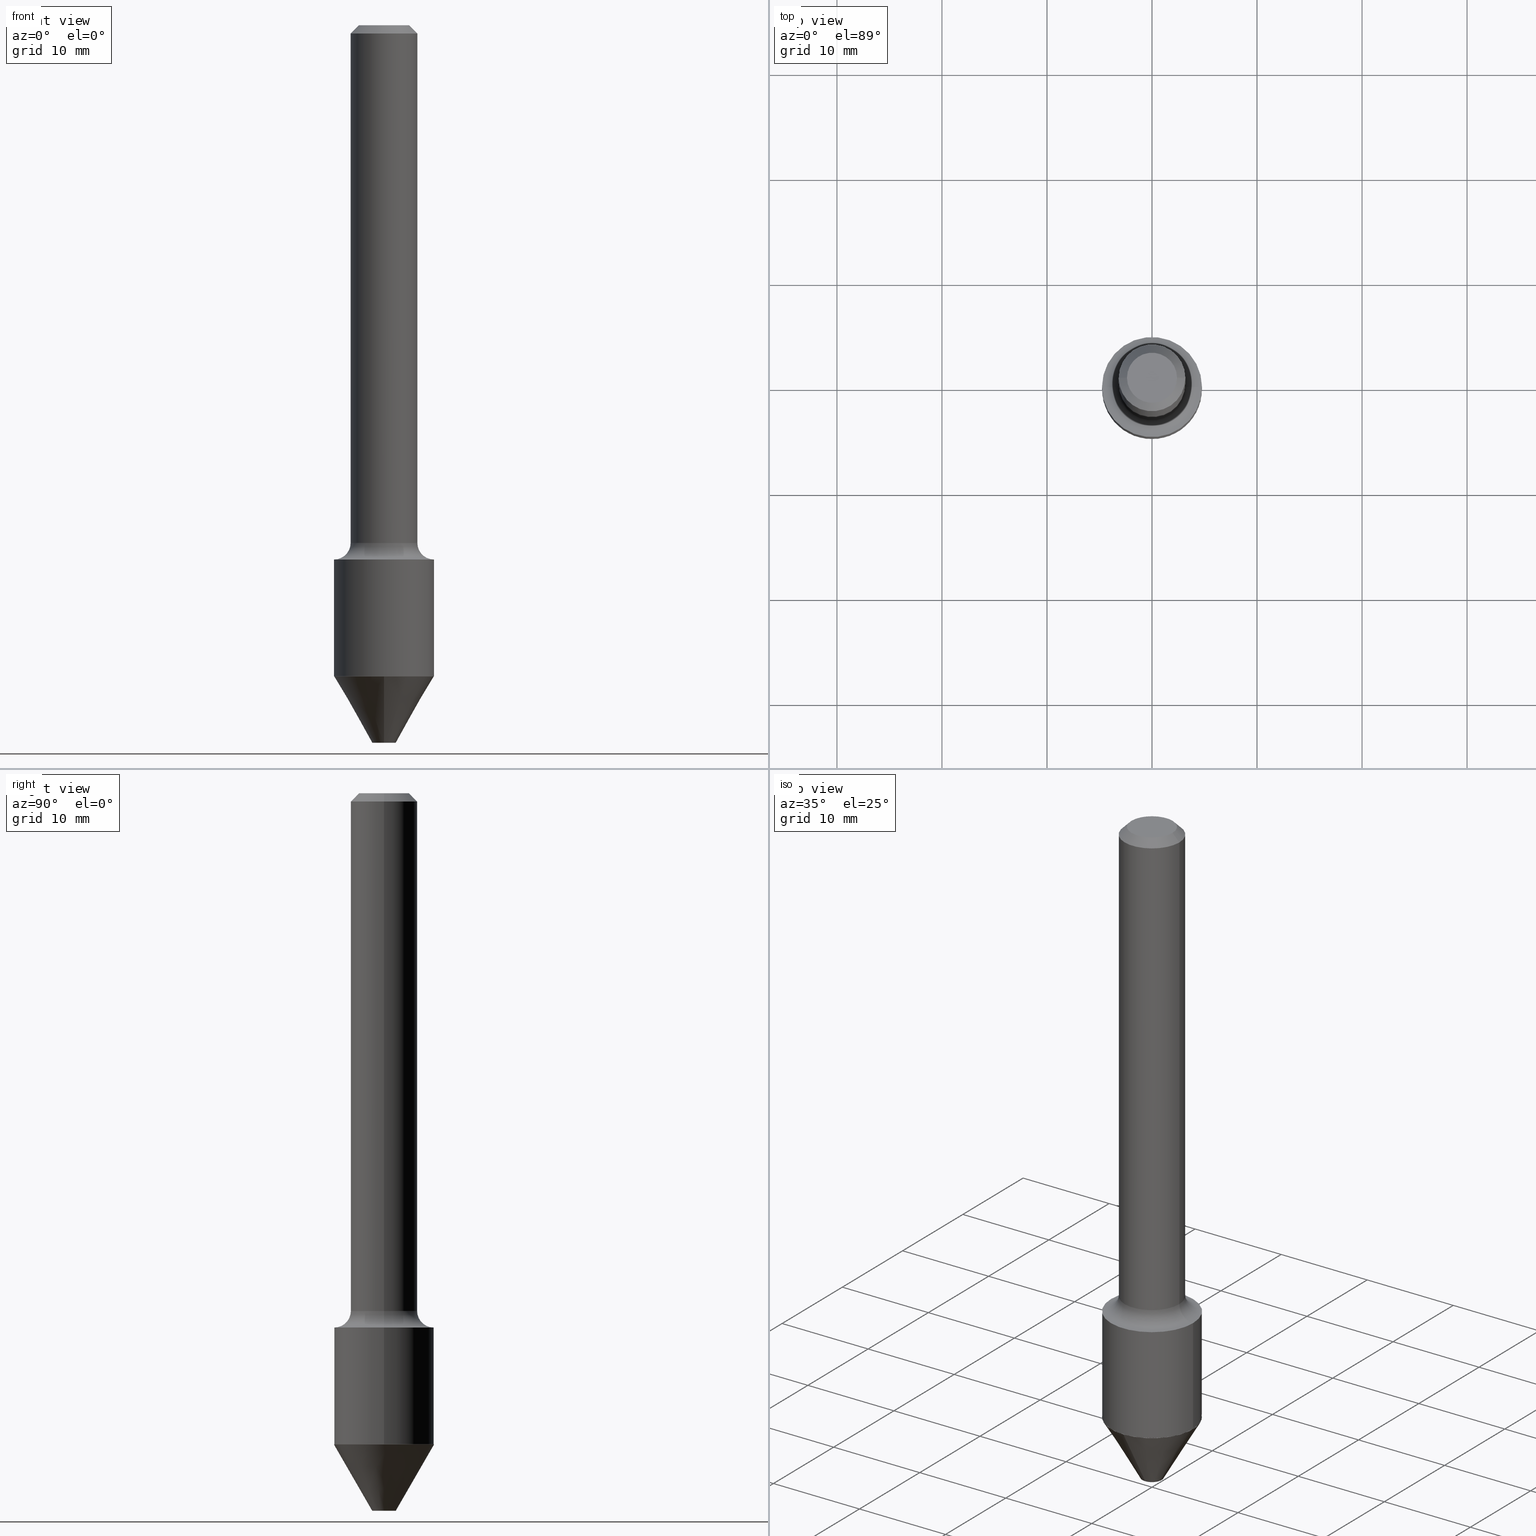
[diagram: canonical four-view strip — front | top / right | iso, engineering-drawing reading convention]
A machine part, canonical four-view strip (front | top / right | iso — engineering-drawing reading convention). The complete STEP part file that produces these views, byte-faithful:
ISO-10303-21;
HEADER;
FILE_DESCRIPTION (( 'STEP AP203' ),
    '1' );
FILE_NAME ('74134.STEP',
    '2025-06-20T12:29:13',
    ( '' ),
    ( '' ),
    'SwSTEP 2.0',
    'SolidWorks 2024',
    '' );
FILE_SCHEMA (( 'CONFIG_CONTROL_DESIGN' ));
ENDSEC;

DATA;
#1 = EDGE_CURVE ( 'NONE', #422, #252, #80, .T. ) ;
#2 = DIRECTION ( 'NONE',  ( 1.000000000000000000, -6.982962677686265922E-15, 4.876176775795935793E-29 ) ) ;
#3 = DIRECTION ( 'NONE',  ( -6.982962677686265922E-15, -1.000000000000000000, 2.913971193241881950E-15 ) ) ;
#4 = PERSON_AND_ORGANIZATION ( #440, #118 ) ;
#5 = FACE_OUTER_BOUND ( 'NONE', #281, .T. ) ;
#6 = DIRECTION ( 'NONE',  ( -2.493412854807490386E-29, 3.422822732410152858E-15, 1.000000000000000000 ) ) ;
#7 = CIRCLE ( 'NONE', #280, 0.1250000000000002498 ) ;
#8 = COORDINATED_UNIVERSAL_TIME_OFFSET ( 5, 0, .BEHIND. ) ;
#9 = CARTESIAN_POINT ( 'NONE',  ( -1.674691438524348408E-28, -4.279513526947378394E-14, -2.689999999999999947 ) ) ;
#10 = ADVANCED_FACE ( 'NONE', ( #5 ), #241, .T. ) ;
#11 =( CONVERSION_BASED_UNIT ( 'INCH', #211 ) LENGTH_UNIT ( ) NAMED_UNIT ( #265 ) );
#12 = MANIFOLD_SOLID_BREP ( 'Body-Move/Copy2[1]', #362 ) ;
#13 = CARTESIAN_POINT ( 'NONE',  ( 5.912940782711456806E-29, -8.603198800390132018E-15, -2.440950709113889783 ) ) ;
#14 = APPROVAL_ROLE ( '' ) ;
#15 = ADVANCED_FACE ( 'NONE', ( #330 ), #393, .T. ) ;
#16 = DIRECTION ( 'NONE',  ( -2.445468806185136877E-29, 3.491481338843145188E-15, 1.000000000000000000 ) ) ;
#17 = VERTEX_POINT ( 'NONE', #435 ) ;
#18 = VECTOR ( 'NONE', #267, 39.37007874015748143 ) ;
#19 = CARTESIAN_POINT ( 'NONE',  ( 0.1250000000000000000, -9.664964674933483956E-16, -0.03120000000000020327 ) ) ;
#20 = CC_DESIGN_APPROVAL ( #501, ( #467 ) ) ;
#21 = EDGE_CURVE ( 'NONE', #226, #395, #367, .T. ) ;
#22 = DIRECTION ( 'NONE',  ( -2.445468806185136597E-29, 3.491481338843145583E-15, 1.000000000000000000 ) ) ;
#23 = ORIENTED_EDGE ( 'NONE', *, *, #346, .T. ) ;
#24 = DIRECTION ( 'NONE',  ( 1.000000000000000000, -6.982962677686264344E-15, 0.000000000000000000 ) ) ;
#25 = DIRECTION ( 'NONE',  ( 0.000000000000000000, 0.000000000000000000, 1.000000000000000000 ) ) ;
#26 = LINE ( 'NONE', #138, #18 ) ;
#27 = CIRCLE ( 'NONE', #219, 0.1870000000000002771 ) ;
#28 = VERTEX_POINT ( 'NONE', #39 ) ;
#29 = CARTESIAN_POINT ( 'NONE',  ( -0.1870000000000000828, -7.191169706861590758E-15, -2.440950709113889783 ) ) ;
#30 = ORIENTED_EDGE ( 'NONE', *, *, #397, .F. ) ;
#31 = CARTESIAN_POINT ( 'NONE',  ( -0.1250000000000000000, 7.639361169388764871E-16, -0.03120000000000020327 ) ) ;
#32 = AXIS2_PLACEMENT_3D ( 'NONE', #242, #399, #36 ) ;
#33 = DIRECTION ( 'NONE',  ( -4.851104656540963486E-15, -0.7071067811865499042, -0.7071067811865450192 ) ) ;
#34 = ORIENTED_EDGE ( 'NONE', *, *, #342, .F. ) ;
#35 = AXIS2_PLACEMENT_3D ( 'NONE', #338, #344, #304 ) ;
#36 = DIRECTION ( 'NONE',  ( -6.982962677686265922E-15, -1.000000000000000000, 2.913971193241881950E-15 ) ) ;
#37 = AXIS2_PLACEMENT_3D ( 'NONE', #61, #96, #131 ) ;
#38 = AXIS2_PLACEMENT_3D ( 'NONE', #403, #201, #361 ) ;
#39 = CARTESIAN_POINT ( 'NONE',  ( 0.1250000000000002498, -7.648089872735909268E-15, -1.940500000000000336 ) ) ;
#40 = DIRECTION ( 'NONE',  ( -2.445468806185136597E-29, 3.491481338843145583E-15, 1.000000000000000000 ) ) ;
#41 = DIRECTION ( 'NONE',  ( 1.000000000000000000, -6.982962677686265922E-15, 4.876176775795935793E-29 ) ) ;
#42 = PERSON_AND_ORGANIZATION ( #440, #118 ) ;
#43 = ORIENTED_EDGE ( 'NONE', *, *, #351, .T. ) ;
#44 = DIRECTION ( 'NONE',  ( -2.445468806185136597E-29, 3.491481338843145583E-15, 1.000000000000000000 ) ) ;
#45 = DIRECTION ( 'NONE',  ( -1.000000000000000000, 6.982962677686266711E-15, 0.000000000000000000 ) ) ;
#46 = VECTOR ( 'NONE', #186, 39.37007874015748854 ) ;
#47 = TOROIDAL_SURFACE ( 'NONE', #424, 0.1875000000000000555, 0.06249999999999974326 ) ;
#48 = CARTESIAN_POINT ( 'NONE',  ( 5.969268816573506497E-29, -8.522533849907088909E-15, -2.440950709113889783 ) ) ;
#49 = CC_DESIGN_PERSON_AND_ORGANIZATION_ASSIGNMENT ( #120, #396, ( #467 ) ) ;
#50 = APPROVAL_STATUS ( 'not_yet_approved' ) ;
#51 = CARTESIAN_POINT ( 'NONE',  ( 0.000000000000000000, 0.000000000000000000, 0.000000000000000000 ) ) ;
#52 = ORIENTED_EDGE ( 'NONE', *, *, #53, .F. ) ;
#53 = EDGE_CURVE ( 'NONE', #339, #62, #27, .T. ) ;
#54 = DIRECTION ( 'NONE',  ( 1.000000000000000000, -6.982962677686265922E-15, 0.000000000000000000 ) ) ;
#55 = AXIS2_PLACEMENT_3D ( 'NONE', #328, #289, #381 ) ;
#56 = EDGE_CURVE ( 'NONE', #226, #175, #404, .T. ) ;
#57 = LINE ( 'NONE', #371, #233 ) ;
#58 = ORIENTED_EDGE ( 'NONE', *, *, #56, .F. ) ;
#59 = CARTESIAN_POINT ( 'NONE',  ( 5.968046082170413696E-29, -8.520788109237668195E-15, -2.440450709113890060 ) ) ;
#60 = ORIENTED_EDGE ( 'NONE', *, *, #258, .T. ) ;
#61 = CARTESIAN_POINT ( 'NONE',  ( 5.914187489138859370E-29, -8.604910211756336085E-15, -2.441450709113889506 ) ) ;
#62 = VERTEX_POINT ( 'NONE', #130 ) ;
#63 = EDGE_CURVE ( 'NONE', #305, #310, #88, .T. ) ;
#64 = CARTESIAN_POINT ( 'NONE',  ( 4.898274018788828321E-29, -6.993437121702820187E-15, -2.003000000000000114 ) ) ;
#65 = AXIS2_PLACEMENT_3D ( 'NONE', #124, #439, #87 ) ;
#66 = AXIS2_PLACEMENT_3D ( 'NONE', #390, #76, #45 ) ;
#67 = LOCAL_TIME ( 8, 29, 13.00000000000000000, #170 ) ;
#68 = EDGE_CURVE ( 'NONE', #422, #395, #414, .T. ) ;
#69 = FACE_OUTER_BOUND ( 'NONE', #72, .T. ) ;
#70 = ORIENTED_EDGE ( 'NONE', *, *, #295, .F. ) ;
#71 = DIRECTION ( 'NONE',  ( -2.445468806185136597E-29, 3.491481338843145583E-15, 1.000000000000000000 ) ) ;
#72 = EDGE_LOOP ( 'NONE', ( #385, #221, #514, #410 ) ) ;
#73 = CC_DESIGN_PERSON_AND_ORGANIZATION_ASSIGNMENT ( #42, #82, ( #91 ) ) ;
#74 = AXIS2_PLACEMENT_3D ( 'NONE', #481, #40, #492 ) ;
#75 = CIRCLE ( 'NONE', #129, 0.09379999999999999449 ) ;
#76 = DIRECTION ( 'NONE',  ( 2.445468806185136597E-29, -3.491481338843145583E-15, -1.000000000000000000 ) ) ;
#77 = CYLINDRICAL_SURFACE ( 'NONE', #136, 0.1875000000000000555 ) ;
#78 = AXIS2_PLACEMENT_3D ( 'NONE', #464, #188, #110 ) ;
#79 = CARTESIAN_POINT ( 'NONE',  ( 7.629862675297675698E-31, -1.089342177719068517E-16, -0.03120000000000020327 ) ) ;
#80 = LINE ( 'NONE', #320, #248 ) ;
#81 = FACE_OUTER_BOUND ( 'NONE', #368, .T. ) ;
#82 = PERSON_AND_ORGANIZATION_ROLE ( 'classification_officer' ) ;
#83 = DIRECTION ( 'NONE',  ( 1.000000000000000000, -6.982962677686260400E-15, 0.000000000000000000 ) ) ;
#84 = CARTESIAN_POINT ( 'NONE',  ( 1.332267629550246224E-15, 0.1874999999999913125, -2.441450709113889950 ) ) ;
#85 = PLANE ( 'NONE',  #196 ) ;
#86 = APPROVAL_DATE_TIME ( #127, #501 ) ;
#87 = DIRECTION ( 'NONE',  ( 1.000000000000000000, -6.982962677686266711E-15, 4.876421767504995250E-29 ) ) ;
#88 = CIRCLE ( 'NONE', #65, 0.09379999999999999449 ) ;
#89 = AXIS2_PLACEMENT_3D ( 'NONE', #425, #149, #468 ) ;
#90 = APPROVAL_DATE_TIME ( #157, #378 ) ;
#91 = SECURITY_CLASSIFICATION ( '', '', #365 ) ;
#92 = DIRECTION ( 'NONE',  ( 1.000000000000000000, -6.982962677686265922E-15, 4.876176775795935793E-29 ) ) ;
#93 = DESIGN_CONTEXT ( 'detailed design', #278, 'design' ) ;
#94 = EDGE_LOOP ( 'NONE', ( #52, #43, #60, #255 ) ) ;
#95 = APPLICATION_PROTOCOL_DEFINITION ( 'international standard', 'config_control_design', 1994, #469 ) ;
#96 = DIRECTION ( 'NONE',  ( -2.493412854807490386E-29, 3.422822732410152858E-15, 1.000000000000000000 ) ) ;
#97 = MECHANICAL_CONTEXT ( 'NONE', #469, 'mechanical' ) ;
#98 = ORIENTED_EDGE ( 'NONE', *, *, #68, .F. ) ;
#99 = LINE ( 'NONE', #218, #154 ) ;
#100 = DIRECTION ( 'NONE',  ( 1.000000000000000000, 0.000000000000000000, 0.000000000000000000 ) ) ;
#101 = AXIS2_PLACEMENT_3D ( 'NONE', #59, #220, #107 ) ;
#102 = CARTESIAN_POINT ( 'NONE',  ( 6.533923486087575718E-29, -9.455650374725741126E-15, -2.690000000000000391 ) ) ;
#103 = VERTEX_POINT ( 'NONE', #215 ) ;
#104 = ADVANCED_FACE ( 'NONE', ( #121 ), #77, .T. ) ;
#105 = FACE_OUTER_BOUND ( 'NONE', #172, .T. ) ;
#106 = ORIENTED_EDGE ( 'NONE', *, *, #311, .T. ) ;
#107 = DIRECTION ( 'NONE',  ( 1.000000000000000000, -6.982962677686270655E-15, 0.000000000000000000 ) ) ;
#108 = ORIENTED_EDGE ( 'NONE', *, *, #56, .T. ) ;
#109 = EDGE_CURVE ( 'NONE', #28, #181, #111, .T. ) ;
#110 = DIRECTION ( 'NONE',  ( 1.000000000000000000, -6.982962677686265922E-15, 0.000000000000000000 ) ) ;
#111 = CIRCLE ( 'NONE', #290, 0.06249999999999974326 ) ;
#112 = ORIENTED_EDGE ( 'NONE', *, *, #109, .F. ) ;
#113 = EDGE_CURVE ( 'NONE', #175, #226, #150, .T. ) ;
#114 = ORIENTED_EDGE ( 'NONE', *, *, #203, .T. ) ;
#115 = ADVANCED_FACE ( 'NONE', ( #443 ), #364, .T. ) ;
#116 = AXIS2_PLACEMENT_3D ( 'NONE', #438, #44, #160 ) ;
#117 = VECTOR ( 'NONE', #33, 39.37007874015748854 ) ;
#118 = ORGANIZATION ( 'UNSPECIFIED', 'UNSPECIFIED', '' ) ;
#119 = FACE_OUTER_BOUND ( 'NONE', #306, .T. ) ;
#120 = PERSON_AND_ORGANIZATION ( #440, #118 ) ;
#121 = FACE_OUTER_BOUND ( 'NONE', #177, .T. ) ;
#122 = VECTOR ( 'NONE', #163, 39.37007874015748143 ) ;
#123 = DIRECTION ( 'NONE',  ( -6.982962677686265922E-15, -1.000000000000000000, 2.913971193241881950E-15 ) ) ;
#124 = CARTESIAN_POINT ( 'NONE',  ( 3.743544432386658428E-46, -5.344789307371216869E-32, -1.530808498934191509E-17 ) ) ;
#125 = DIRECTION ( 'NONE',  ( 6.982962677686266711E-15, 1.000000000000000000, -2.921762560068726256E-15 ) ) ;
#126 = DIRECTION ( 'NONE',  ( -6.982962677686266711E-15, -1.000000000000000000, 3.491481338843145583E-15 ) ) ;
#127 = DATE_AND_TIME ( #489, #67 ) ;
#128 = CLOSED_SHELL ( 'NONE', ( #477, #198, #434, #104, #350, #384, #10, #294, #432, #254, #486, #15 ) ) ;
#129 = AXIS2_PLACEMENT_3D ( 'NONE', #144, #441, #253 ) ;
#130 = CARTESIAN_POINT ( 'NONE',  ( 1.307559761396813064E-15, 0.1869999999999916729, -2.440950709113890227 ) ) ;
#131 = DIRECTION ( 'NONE',  ( -6.982962677686265922E-15, -1.000000000000000000, 2.913971193241881950E-15 ) ) ;
#132 = EDGE_LOOP ( 'NONE', ( #487, #511, #411, #30 ) ) ;
#133 = CALENDAR_DATE ( 2025, 20, 6 ) ;
#134 = DIRECTION ( 'NONE',  ( -2.445468806185136877E-29, 3.491481338843145188E-15, 1.000000000000000000 ) ) ;
#135 = ORIENTED_EDGE ( 'NONE', *, *, #351, .F. ) ;
#136 = AXIS2_PLACEMENT_3D ( 'NONE', #406, #239, #2 ) ;
#137 = CONICAL_SURFACE ( 'NONE', #491, 0.1870000000000000828, 0.7853981633975165577 ) ;
#138 = CARTESIAN_POINT ( 'NONE',  ( -0.1250000000000000000, 7.639361169388764871E-16, -0.03120000000000020327 ) ) ;
#139 = ORIENTED_EDGE ( 'NONE', *, *, #113, .F. ) ;
#140 = CC_DESIGN_PERSON_AND_ORGANIZATION_ASSIGNMENT ( #451, #329, ( #152 ) ) ;
#141 = DIRECTION ( 'NONE',  ( 1.000000000000000000, -6.982962677686267499E-15, 0.000000000000000000 ) ) ;
#142 = ORIENTED_EDGE ( 'NONE', *, *, #391, .T. ) ;
#143 = ORIENTED_EDGE ( 'NONE', *, *, #258, .F. ) ;
#144 = CARTESIAN_POINT ( 'NONE',  ( 3.743544432386658428E-46, -5.344789307371216869E-32, -1.530808498934191509E-17 ) ) ;
#145 = ORIENTED_EDGE ( 'NONE', *, *, #161, .T. ) ;
#146 = EDGE_LOOP ( 'NONE', ( #450, #216, #348, #112 ) ) ;
#147 = ADVANCED_FACE ( 'NONE', ( #326 ), #479, .T. ) ;
#148 = PRODUCT ( '74134', '74134', '', ( #97 ) ) ;
#149 = DIRECTION ( 'NONE',  ( -2.493412854807490386E-29, 3.422822732410152858E-15, 1.000000000000000000 ) ) ;
#150 = CIRCLE ( 'NONE', #195, 0.1870000000000000828 ) ;
#151 = ORIENTED_EDGE ( 'NONE', *, *, #200, .T. ) ;
#152 = PRODUCT_DEFINITION ( 'UNKNOWN', '', #467, #93 ) ;
#153 = ADVANCED_FACE ( 'NONE', ( #287 ), #247, .F. ) ;
#154 = VECTOR ( 'NONE', #134, 39.37007874015748143 ) ;
#155 = AXIS2_PLACEMENT_3D ( 'NONE', #209, #408, #213 ) ;
#156 =( NAMED_UNIT ( * ) PLANE_ANGLE_UNIT ( ) SI_UNIT ( $, .RADIAN. ) );
#157 = DATE_AND_TIME ( #327, #332 ) ;
#158 = EDGE_CURVE ( 'NONE', #28, #300, #99, .T. ) ;
#159 = DIRECTION ( 'NONE',  ( 2.493412854807490386E-29, -3.422822732410152858E-15, -1.000000000000000000 ) ) ;
#160 = DIRECTION ( 'NONE',  ( 1.000000000000000000, -6.982962677686267499E-15, 0.000000000000000000 ) ) ;
#161 = EDGE_CURVE ( 'NONE', #28, #103, #7, .T. ) ;
#162 = CYLINDRICAL_SURFACE ( 'NONE', #454, 0.1250000000000001110 ) ;
#163 = DIRECTION ( 'NONE',  ( 0.7071067811865957564, -2.468850131082761932E-15, 0.7071067811864992780 ) ) ;
#164 = AXIS2_PLACEMENT_3D ( 'NONE', #64, #296, #54 ) ;
#165 = LINE ( 'NONE', #84, #470 ) ;
#166 = CONICAL_SURFACE ( 'NONE', #234, 0.1874999999999999167, 0.5235987755983387837 ) ;
#167 = COORDINATED_UNIVERSAL_TIME_OFFSET ( 5, 0, .BEHIND. ) ;
#168 = DIRECTION ( 'NONE',  ( 2.493412854807489825E-29, -3.422822732410153252E-15, -1.000000000000000000 ) ) ;
#169 = CARTESIAN_POINT ( 'NONE',  ( 5.912940782711456806E-29, -8.603198800390132018E-15, -2.440950709113889783 ) ) ;
#170 = COORDINATED_UNIVERSAL_TIME_OFFSET ( 5, 0, .BEHIND. ) ;
#171 = ORIENTED_EDGE ( 'NONE', *, *, #158, .T. ) ;
#172 = EDGE_LOOP ( 'NONE', ( #423, #415 ) ) ;
#173 = CIRCLE ( 'NONE', #78, 0.1875000000000000555 ) ;
#174 =( GEOMETRIC_REPRESENTATION_CONTEXT ( 3 ) GLOBAL_UNCERTAINTY_ASSIGNED_CONTEXT ( ( #315 ) ) GLOBAL_UNIT_ASSIGNED_CONTEXT ( ( #11, #156, #370 ) ) REPRESENTATION_CONTEXT ( 'NONE', 'WORKASPACE' ) );
#175 = VERTEX_POINT ( 'NONE', #29 ) ;
#176 = LINE ( 'NONE', #293, #276 ) ;
#177 = EDGE_LOOP ( 'NONE', ( #263, #260, #445, #187 ) ) ;
#178 = DIRECTION ( 'NONE',  ( 2.438088387897960049E-29, -3.491481338843145188E-15, -1.000000000000000000 ) ) ;
#179 = ORIENTED_EDGE ( 'NONE', *, *, #240, .F. ) ;
#180 = LINE ( 'NONE', #369, #261 ) ;
#181 = VERTEX_POINT ( 'NONE', #460 ) ;
#182 = AXIS2_PLACEMENT_3D ( 'NONE', #227, #178, #419 ) ;
#183 = DIRECTION ( 'NONE',  ( -2.445468806185136877E-29, 3.491481338843145188E-15, 1.000000000000000000 ) ) ;
#184 = CC_DESIGN_SECURITY_CLASSIFICATION ( #91, ( #467 ) ) ;
#185 = ORIENTED_EDGE ( 'NONE', *, *, #21, .T. ) ;
#186 = DIRECTION ( 'NONE',  ( -3.491481338843396046E-15, -0.5000000000000315303, 0.8660254037844203889 ) ) ;
#187 = ORIENTED_EDGE ( 'NONE', *, *, #203, .F. ) ;
#188 = DIRECTION ( 'NONE',  ( -2.445468806185136597E-29, 3.491481338843145583E-15, 1.000000000000000000 ) ) ;
#189 = ORIENTED_EDGE ( 'NONE', *, *, #113, .T. ) ;
#190 = ORIENTED_EDGE ( 'NONE', *, *, #192, .F. ) ;
#191 = APPROVAL_PERSON_ORGANIZATION ( #456, #501, #14 ) ;
#192 = EDGE_CURVE ( 'NONE', #455, #17, #504, .T. ) ;
#193 = FACE_OUTER_BOUND ( 'NONE', #420, .T. ) ;
#194 = PERSON_AND_ORGANIZATION ( #440, #118 ) ;
#195 = AXIS2_PLACEMENT_3D ( 'NONE', #48, #243, #212 ) ;
#196 = AXIS2_PLACEMENT_3D ( 'NONE', #285, #394, #41 ) ;
#197 = DIRECTION ( 'NONE',  ( -2.445468806185136597E-29, 3.491481338843145583E-15, 1.000000000000000000 ) ) ;
#198 = ADVANCED_FACE ( 'NONE', ( #452 ), #453, .T. ) ;
#199 = CARTESIAN_POINT ( 'NONE',  ( 5.968046082170413696E-29, -8.520788109237668195E-15, -2.440450709113890060 ) ) ;
#200 = EDGE_CURVE ( 'NONE', #310, #345, #26, .T. ) ;
#201 = DIRECTION ( 'NONE',  ( 7.105427357601001859E-15, 1.000000000000000000, -3.491481338843145583E-15 ) ) ;
#202 = PRODUCT_DEFINITION_SHAPE ( 'NONE', 'NONE',  #152 ) ;
#203 = EDGE_CURVE ( 'NONE', #395, #181, #180, .T. ) ;
#204 = DIRECTION ( 'NONE',  ( 1.000000000000000000, -6.982962677686270655E-15, 0.000000000000000000 ) ) ;
#205 = DIRECTION ( 'NONE',  ( -2.445468806185136597E-29, 3.491481338843145583E-15, 1.000000000000000000 ) ) ;
#206 = DIRECTION ( 'NONE',  ( 1.000000000000000000, -6.982962677686267499E-15, 0.000000000000000000 ) ) ;
#207 = APPROVAL_ROLE ( '' ) ;
#208 = DIRECTION ( 'NONE',  ( -2.493412854807490386E-29, 3.422822732410152858E-15, 1.000000000000000000 ) ) ;
#209 = CARTESIAN_POINT ( 'NONE',  ( 5.912940782711456806E-29, -8.603198800390132018E-15, -2.440950709113889783 ) ) ;
#210 = AXIS2_PLACEMENT_3D ( 'NONE', #79, #472, #358 ) ;
#211 = LENGTH_MEASURE_WITH_UNIT ( LENGTH_MEASURE( 0.02539999999999999897 ), #318 );
#212 = DIRECTION ( 'NONE',  ( 1.000000000000000000, -6.982962677686267499E-15, 0.000000000000000000 ) ) ;
#213 = DIRECTION ( 'NONE',  ( -6.982962677686266711E-15, -1.000000000000000000, 2.921762560068726256E-15 ) ) ;
#214 = DATE_TIME_ROLE ( 'creation_date' ) ;
#215 = CARTESIAN_POINT ( 'NONE',  ( -0.1250000000000002498, -5.774105305238813757E-15, -1.940500000000000336 ) ) ;
#216 = ORIENTED_EDGE ( 'NONE', *, *, #462, .T. ) ;
#217 = EDGE_CURVE ( 'NONE', #300, #345, #301, .T. ) ;
#218 = CARTESIAN_POINT ( 'NONE',  ( 0.1250000000000001110, -8.728703347107842263E-16, 6.095220969744926047E-30 ) ) ;
#219 = AXIS2_PLACEMENT_3D ( 'NONE', #13, #208, #357 ) ;
#220 = DIRECTION ( 'NONE',  ( -2.445468806185136597E-29, 3.491481338843145583E-15, 1.000000000000000000 ) ) ;
#221 = ORIENTED_EDGE ( 'NONE', *, *, #161, .F. ) ;
#222 = APPROVAL_ROLE ( '' ) ;
#223 = DIRECTION ( 'NONE',  ( 4.937700262164547253E-15, 0.7071067811865450192, -0.7071067811865499042 ) ) ;
#224 = ORIENTED_EDGE ( 'NONE', *, *, #238, .T. ) ;
#225 = CARTESIAN_POINT ( 'NONE',  ( 5.969268816573506497E-29, -8.522533849907088909E-15, -2.440950709113889783 ) ) ;
#226 = VERTEX_POINT ( 'NONE', #262 ) ;
#227 = CARTESIAN_POINT ( 'NONE',  ( 6.550018991669718048E-16, 0.09379999999999999449, -3.351549920781579832E-16 ) ) ;
#228 = ORIENTED_EDGE ( 'NONE', *, *, #334, .F. ) ;
#229 = LINE ( 'NONE', #427, #291 ) ;
#230 = VERTEX_POINT ( 'NONE', #417 ) ;
#231 = LINE ( 'NONE', #387, #117 ) ;
#232 = ORIENTED_EDGE ( 'NONE', *, *, #246, .T. ) ;
#233 = VECTOR ( 'NONE', #500, 39.37007874015748143 ) ;
#234 = AXIS2_PLACEMENT_3D ( 'NONE', #236, #6, #123 ) ;
#235 = CC_DESIGN_APPROVAL ( #316, ( #152 ) ) ;
#236 = CARTESIAN_POINT ( 'NONE',  ( 5.914187489138859370E-29, -8.604910211756336085E-15, -2.441450709113889506 ) ) ;
#237 = DIRECTION ( 'NONE',  ( 1.000000000000000000, -6.982962677686267499E-15, 4.876176775795936353E-29 ) ) ;
#238 = EDGE_CURVE ( 'NONE', #103, #345, #176, .T. ) ;
#239 = DIRECTION ( 'NONE',  ( -2.445468806185136597E-29, 3.491481338843145583E-15, 1.000000000000000000 ) ) ;
#240 = EDGE_CURVE ( 'NONE', #455, #230, #458, .T. ) ;
#241 = CYLINDRICAL_SURFACE ( 'NONE', #466, 0.1875000000000000555 ) ;
#242 = CARTESIAN_POINT ( 'NONE',  ( 5.914187489138859370E-29, -8.604910211756336085E-15, -2.441450709113889506 ) ) ;
#243 = DIRECTION ( 'NONE',  ( -2.445468806185136597E-29, 3.491481338843145583E-15, 1.000000000000000000 ) ) ;
#244 = CARTESIAN_POINT ( 'NONE',  ( -3.072503578181288162E-16, -0.04400000000000924005, -2.690000000000000391 ) ) ;
#245 = DATE_AND_TIME ( #401, #343 ) ;
#246 = EDGE_CURVE ( 'NONE', #103, #28, #323, .T. ) ;
#247 = PLANE ( 'NONE',  #55 ) ;
#248 = VECTOR ( 'NONE', #16, 39.37007874015748143 ) ;
#249 = CIRCLE ( 'NONE', #155, 0.1870000000000002771 ) ;
#250 = CARTESIAN_POINT ( 'NONE',  ( 0.000000000000000000, 0.000000000000000000, 0.000000000000000000 ) ) ;
#251 = LOCAL_TIME ( 8, 29, 13.00000000000000000, #372 ) ;
#252 = VERTEX_POINT ( 'NONE', #333 ) ;
#253 = DIRECTION ( 'NONE',  ( 1.000000000000000000, -6.982962677686266711E-15, 4.876421767504995250E-29 ) ) ;
#254 = ADVANCED_FACE ( 'NONE', ( #105 ), #376, .F. ) ;
#255 = ORIENTED_EDGE ( 'NONE', *, *, #286, .F. ) ;
#256 = APPROVAL_DATE_TIME ( #297, #316 ) ;
#257 = LINE ( 'NONE', #347, #312 ) ;
#258 = EDGE_CURVE ( 'NONE', #230, #340, #322, .T. ) ;
#259 = DIRECTION ( 'NONE',  ( 1.000000000000000000, -6.982962677686264344E-15, 0.000000000000000000 ) ) ;
#260 = ORIENTED_EDGE ( 'NONE', *, *, #1, .T. ) ;
#261 = VECTOR ( 'NONE', #183, 39.37007874015748143 ) ;
#262 = CARTESIAN_POINT ( 'NONE',  ( 0.1870000000000000828, -9.828347870634422488E-15, -2.440950709113889783 ) ) ;
#263 = ORIENTED_EDGE ( 'NONE', *, *, #295, .T. ) ;
#264 = DIRECTION ( 'NONE',  ( 2.445468806185136597E-29, -3.491481338843145583E-15, -1.000000000000000000 ) ) ;
#265 = DIMENSIONAL_EXPONENTS ( 1.000000000000000000, 0.000000000000000000, 0.000000000000000000, 0.000000000000000000, 0.000000000000000000, 0.000000000000000000, 0.000000000000000000 ) ;
#266 = ORIENTED_EDGE ( 'NONE', *, *, #346, .F. ) ;
#267 = DIRECTION ( 'NONE',  ( -0.7071067811865453523, 2.468850131082234184E-15, -0.7071067811865496822 ) ) ;
#268 = ORIENTED_EDGE ( 'NONE', *, *, #311, .F. ) ;
#269 = ORIENTED_EDGE ( 'NONE', *, *, #158, .F. ) ;
#270 = AXIS2_PLACEMENT_3D ( 'NONE', #448, #22, #259 ) ;
#271 = CIRCLE ( 'NONE', #38, 0.06249999999999974326 ) ;
#272 = DIRECTION ( 'NONE',  ( 1.000000000000000000, -6.982962677686269077E-15, 4.883557194083114022E-29 ) ) ;
#273 = ORIENTED_EDGE ( 'NONE', *, *, #21, .F. ) ;
#274 = CARTESIAN_POINT ( 'NONE',  ( 4.745432218402258405E-29, -6.775219538025124352E-15, -1.940500000000000336 ) ) ;
#275 = ORIENTED_EDGE ( 'NONE', *, *, #68, .T. ) ;
#276 = VECTOR ( 'NONE', #496, 39.37007874015748143 ) ;
#277 = CIRCLE ( 'NONE', #89, 0.04399999999999978234 ) ;
#278 = APPLICATION_CONTEXT ( 'configuration controlled 3d designs of mechanical parts and assemblies' ) ;
#279 = CARTESIAN_POINT ( 'NONE',  ( 5.969268816573506497E-29, -8.522533849907088909E-15, -2.440950709113889783 ) ) ;
#280 = AXIS2_PLACEMENT_3D ( 'NONE', #299, #335, #24 ) ;
#281 = EDGE_LOOP ( 'NONE', ( #292, #275, #114, #228 ) ) ;
#282 = ADVANCED_BREP_SHAPE_REPRESENTATION ( '74134', ( #12, #355, #407 ), #174 ) ;
#283 = FACE_OUTER_BOUND ( 'NONE', #132, .T. ) ;
#284 = DIRECTION ( 'NONE',  ( -2.445468806185136597E-29, 3.491481338843145583E-15, 1.000000000000000000 ) ) ;
#285 = CARTESIAN_POINT ( 'NONE',  ( 5.969268816573506497E-29, -8.522533849907088909E-15, -2.440950709113889783 ) ) ;
#286 = EDGE_CURVE ( 'NONE', #62, #340, #257, .T. ) ;
#287 = FACE_OUTER_BOUND ( 'NONE', #402, .T. ) ;
#288 = DIRECTION ( 'NONE',  ( 3.552713678800723388E-15, 0.5000000000000374145, 0.8660254037844169472 ) ) ;
#289 = DIRECTION ( 'NONE',  ( 2.493412854807489825E-29, -3.422822732410153252E-15, -1.000000000000000000 ) ) ;
#290 = AXIS2_PLACEMENT_3D ( 'NONE', #359, #126, #83 ) ;
#291 = VECTOR ( 'NONE', #349, 39.37007874015748143 ) ;
#292 = ORIENTED_EDGE ( 'NONE', *, *, #1, .F. ) ;
#293 = CARTESIAN_POINT ( 'NONE',  ( -0.1250000000000001110, 8.881784197001260212E-16, -6.148668862818637832E-30 ) ) ;
#294 = ADVANCED_FACE ( 'NONE', ( #508 ), #317, .T. ) ;
#295 = EDGE_CURVE ( 'NONE', #395, #422, #331, .T. ) ;
#296 = DIRECTION ( 'NONE',  ( -2.445468806185136597E-29, 3.491481338843145583E-15, 1.000000000000000000 ) ) ;
#297 = DATE_AND_TIME ( #133, #353 ) ;
#298 = EDGE_CURVE ( 'NONE', #181, #252, #392, .T. ) ;
#299 = CARTESIAN_POINT ( 'NONE',  ( 4.745432218402258405E-29, -6.775219538025124352E-15, -1.940500000000000336 ) ) ;
#300 = VERTEX_POINT ( 'NONE', #19 ) ;
#301 = CIRCLE ( 'NONE', #35, 0.1250000000000000000 ) ;
#302 = APPROVAL_STATUS ( 'not_yet_approved' ) ;
#303 = CONICAL_SURFACE ( 'NONE', #32, 0.1874999999999999167, 0.5235987755983387837 ) ;
#304 = DIRECTION ( 'NONE',  ( 1.000000000000000000, -6.982962677686266711E-15, 0.000000000000000000 ) ) ;
#305 = VERTEX_POINT ( 'NONE', #449 ) ;
#306 = EDGE_LOOP ( 'NONE', ( #145, #224, #377, #269 ) ) ;
#307 = DIRECTION ( 'NONE',  ( -1.000000000000000000, 6.982962677686266711E-15, 0.000000000000000000 ) ) ;
#308 = ORIENTED_EDGE ( 'NONE', *, *, #474, .T. ) ;
#309 = CARTESIAN_POINT ( 'NONE',  ( 4.745432218402258405E-29, -6.775219538025124352E-15, -1.940500000000000336 ) ) ;
#310 = VERTEX_POINT ( 'NONE', #413 ) ;
#311 = EDGE_CURVE ( 'NONE', #305, #300, #57, .T. ) ;
#312 = VECTOR ( 'NONE', #223, 39.37007874015748854 ) ;
#313 = FACE_OUTER_BOUND ( 'NONE', #146, .T. ) ;
#314 = ORIENTED_EDGE ( 'NONE', *, *, #217, .T. ) ;
#315 = UNCERTAINTY_MEASURE_WITH_UNIT (LENGTH_MEASURE( 1.000000000000000082E-05 ), #11, 'distance_accuracy_value', 'NONE');
#316 = APPROVAL ( #50, 'UNSPECIFIED' ) ;
#317 = CONICAL_SURFACE ( 'NONE', #379, 0.1870000000000000828, 0.7853981633975165577 ) ;
#318 =( LENGTH_UNIT ( ) NAMED_UNIT ( * ) SI_UNIT ( $, .METRE. ) );
#319 = ORIENTED_EDGE ( 'NONE', *, *, #388, .F. ) ;
#320 = CARTESIAN_POINT ( 'NONE',  ( -0.1875000000000000555, 1.332267629550188243E-15, -9.223003294227950793E-30 ) ) ;
#321 = CARTESIAN_POINT ( 'NONE',  ( 0.000000000000000000, 0.000000000000000000, 0.000000000000000000 ) ) ;
#322 = CIRCLE ( 'NONE', #37, 0.1874999999999999167 ) ;
#323 = CIRCLE ( 'NONE', #270, 0.1250000000000002498 ) ;
#324 = EDGE_LOOP ( 'NONE', ( #382, #106, #314, #386 ) ) ;
#325 = FACE_OUTER_BOUND ( 'NONE', #354, .T. ) ;
#326 = FACE_OUTER_BOUND ( 'NONE', #94, .T. ) ;
#327 = CALENDAR_DATE ( 2025, 20, 6 ) ;
#328 = CARTESIAN_POINT ( 'NONE',  ( 5.969268816573506497E-29, -8.522533849907088909E-15, -2.440950709113889783 ) ) ;
#329 = PERSON_AND_ORGANIZATION_ROLE ( 'creator' ) ;
#330 = FACE_OUTER_BOUND ( 'NONE', #428, .T. ) ;
#331 = CIRCLE ( 'NONE', #101, 0.1875000000000000555 ) ;
#332 = LOCAL_TIME ( 8, 29, 13.00000000000000000, #167 ) ;
#333 = CARTESIAN_POINT ( 'NONE',  ( -0.1875000000000000555, -5.661169492152631549E-15, -2.003000000000000114 ) ) ;
#334 = EDGE_CURVE ( 'NONE', #252, #181, #173, .T. ) ;
#335 = DIRECTION ( 'NONE',  ( -2.445468806185136597E-29, 3.491481338843145583E-15, 1.000000000000000000 ) ) ;
#336 = EDGE_LOOP ( 'NONE', ( #461, #429, #143, #179 ) ) ;
#337 = CALENDAR_DATE ( 2025, 20, 6 ) ;
#338 = CARTESIAN_POINT ( 'NONE',  ( 7.629862675297675698E-31, -1.089342177719068517E-16, -0.03120000000000020327 ) ) ;
#339 = VERTEX_POINT ( 'NONE', #383 ) ;
#340 = VERTEX_POINT ( 'NONE', #510 ) ;
#341 = AXIS2_PLACEMENT_3D ( 'NONE', #309, #205, #360 ) ;
#342 = EDGE_CURVE ( 'NONE', #17, #455, #277, .T. ) ;
#343 = LOCAL_TIME ( 8, 29, 13.00000000000000000, #8 ) ;
#344 = DIRECTION ( 'NONE',  ( -2.445468806185136597E-29, 3.491481338843145583E-15, 1.000000000000000000 ) ) ;
#345 = VERTEX_POINT ( 'NONE', #31 ) ;
#346 = EDGE_CURVE ( 'NONE', #175, #422, #229, .T. ) ;
#347 = CARTESIAN_POINT ( 'NONE',  ( 1.305814020727392941E-15, 0.1869999999999916729, -2.440950709113890227 ) ) ;
#348 = ORIENTED_EDGE ( 'NONE', *, *, #334, .T. ) ;
#349 = DIRECTION ( 'NONE',  ( -0.7071067811865957564, 7.493145998870527710E-15, 0.7071067811864992780 ) ) ;
#350 = ADVANCED_FACE ( 'NONE', ( #313 ), #47, .F. ) ;
#351 = EDGE_CURVE ( 'NONE', #339, #230, #231, .T. ) ;
#352 = AXIS2_PLACEMENT_3D ( 'NONE', #9, #168, #366 ) ;
#353 = LOCAL_TIME ( 8, 29, 13.00000000000000000, #499 ) ;
#354 = EDGE_LOOP ( 'NONE', ( #108, #23, #70, #273 ) ) ;
#355 = MANIFOLD_SOLID_BREP ( 'Body-Move/Copy2[2]', #128 ) ;
#356 = CONICAL_SURFACE ( 'NONE', #516, 0.1870000000000002771, 0.7853981633974482790 ) ;
#357 = DIRECTION ( 'NONE',  ( -6.982962677686266711E-15, -1.000000000000000000, 2.921762560068726256E-15 ) ) ;
#358 = DIRECTION ( 'NONE',  ( 1.000000000000000000, -6.982962677686266711E-15, 0.000000000000000000 ) ) ;
#359 = CARTESIAN_POINT ( 'NONE',  ( 0.1875000000000000555, -8.084525040091299360E-15, -1.940500000000000336 ) ) ;
#360 = DIRECTION ( 'NONE',  ( 1.000000000000000000, -6.982962677686269077E-15, 4.883557194083114022E-29 ) ) ;
#361 = DIRECTION ( 'NONE',  ( -1.000000000000000000, 7.105427357600993970E-15, 0.000000000000000000 ) ) ;
#362 = CLOSED_SHELL ( 'NONE', ( #147, #493, #153, #115, #498, #437 ) ) ;
#363 = TOROIDAL_SURFACE ( 'NONE', #341, 0.1875000000000000555, 0.06249999999999974326 ) ;
#364 = PLANE ( 'NONE',  #352 ) ;
#365 = SECURITY_CLASSIFICATION_LEVEL ( 'unclassified' ) ;
#366 = DIRECTION ( 'NONE',  ( 6.982962677686265922E-15, 1.000000000000000000, -3.422822732410153252E-15 ) ) ;
#367 = LINE ( 'NONE', #398, #122 ) ;
#368 = EDGE_LOOP ( 'NONE', ( #58, #139 ) ) ;
#369 = CARTESIAN_POINT ( 'NONE',  ( 0.1875000000000000555, -1.309305502066175205E-15, 9.142831454617382414E-30 ) ) ;
#370 =( NAMED_UNIT ( * ) SI_UNIT ( $, .STERADIAN. ) SOLID_ANGLE_UNIT ( ) );
#371 = CARTESIAN_POINT ( 'NONE',  ( 0.1250000000000000000, -9.664964674933483956E-16, -0.03120000000000020327 ) ) ;
#372 = COORDINATED_UNIVERSAL_TIME_OFFSET ( 5, 0, .BEHIND. ) ;
#373 = DIRECTION ( 'NONE',  ( -2.493412854807490386E-29, 3.422822732410152858E-15, 1.000000000000000000 ) ) ;
#374 = EDGE_LOOP ( 'NONE', ( #135, #507, #465, #509 ) ) ;
#375 = PERSON_AND_ORGANIZATION_ROLE ( 'design_owner' ) ;
#376 = PLANE ( 'NONE',  #182 ) ;
#377 = ORIENTED_EDGE ( 'NONE', *, *, #217, .F. ) ;
#378 = APPROVAL ( #480, 'UNSPECIFIED' ) ;
#379 = AXIS2_PLACEMENT_3D ( 'NONE', #225, #506, #141 ) ;
#380 = CONICAL_SURFACE ( 'NONE', #66, 0.1250000000000000000, 0.7853981633974452814 ) ;
#381 = DIRECTION ( 'NONE',  ( 6.982962677686265922E-15, 1.000000000000000000, -3.422822732410153252E-15 ) ) ;
#382 = ORIENTED_EDGE ( 'NONE', *, *, #63, .F. ) ;
#383 = CARTESIAN_POINT ( 'NONE',  ( -1.284628250082660643E-15, -0.1870000000000088813, -2.440950709113889339 ) ) ;
#384 = ADVANCED_FACE ( 'NONE', ( #69 ), #363, .F. ) ;
#385 = ORIENTED_EDGE ( 'NONE', *, *, #462, .F. ) ;
#386 = ORIENTED_EDGE ( 'NONE', *, *, #200, .F. ) ;
#387 = CARTESIAN_POINT ( 'NONE',  ( -1.282913125583219071E-15, -0.1870000000000088813, -2.440950709113889339 ) ) ;
#388 = EDGE_CURVE ( 'NONE', #310, #305, #75, .T. ) ;
#389 = EDGE_CURVE ( 'NONE', #17, #340, #165, .T. ) ;
#390 = CARTESIAN_POINT ( 'NONE',  ( 7.629862675297675698E-31, -1.089342177719068517E-16, -0.03120000000000020327 ) ) ;
#391 = EDGE_CURVE ( 'NONE', #62, #339, #249, .T. ) ;
#392 = CIRCLE ( 'NONE', #164, 0.1875000000000000555 ) ;
#393 = CYLINDRICAL_SURFACE ( 'NONE', #74, 0.1250000000000001110 ) ;
#394 = DIRECTION ( 'NONE',  ( -2.438088387897960049E-29, 3.491481338843145188E-15, 1.000000000000000000 ) ) ;
#395 = VERTEX_POINT ( 'NONE', #488 ) ;
#396 = PERSON_AND_ORGANIZATION_ROLE ( 'creator' ) ;
#397 = EDGE_CURVE ( 'NONE', #340, #230, #405, .T. ) ;
#398 = CARTESIAN_POINT ( 'NONE',  ( 0.1870000000000000828, -9.828347870634422488E-15, -2.440950709113889783 ) ) ;
#399 = DIRECTION ( 'NONE',  ( -2.493412854807490386E-29, 3.422822732410152858E-15, 1.000000000000000000 ) ) ;
#400 = PRODUCT_RELATED_PRODUCT_CATEGORY ( 'detail', '', ( #148 ) ) ;
#401 = CALENDAR_DATE ( 2025, 20, 6 ) ;
#402 = EDGE_LOOP ( 'NONE', ( #142, #447 ) ) ;
#403 = CARTESIAN_POINT ( 'NONE',  ( -0.1875000000000000555, -5.442951908474935715E-15, -1.940500000000000336 ) ) ;
#404 = CIRCLE ( 'NONE', #116, 0.1870000000000000828 ) ;
#405 = CIRCLE ( 'NONE', #444, 0.1874999999999999167 ) ;
#406 = CARTESIAN_POINT ( 'NONE',  ( 0.000000000000000000, 0.000000000000000000, 0.000000000000000000 ) ) ;
#407 = AXIS2_PLACEMENT_3D ( 'NONE', #250, #25, #100 ) ;
#408 = DIRECTION ( 'NONE',  ( -2.493412854807490386E-29, 3.422822732410152858E-15, 1.000000000000000000 ) ) ;
#409 = PERSON_AND_ORGANIZATION ( #440, #118 ) ;
#410 = ORIENTED_EDGE ( 'NONE', *, *, #298, .T. ) ;
#411 = ORIENTED_EDGE ( 'NONE', *, *, #240, .T. ) ;
#412 = DIRECTION ( 'NONE',  ( -6.982962677686265133E-15, -1.000000000000000000, 0.000000000000000000 ) ) ;
#413 = CARTESIAN_POINT ( 'NONE',  ( -0.09379999999999999449, 7.094690080529240967E-16, -1.530808498934668523E-17 ) ) ;
#414 = CIRCLE ( 'NONE', #515, 0.1875000000000000555 ) ;
#415 = ORIENTED_EDGE ( 'NONE', *, *, #63, .T. ) ;
#416 = APPLICATION_PROTOCOL_DEFINITION ( 'international standard', 'config_control_design', 1994, #278 ) ;
#417 = CARTESIAN_POINT ( 'NONE',  ( -1.309305502066115646E-15, -0.1875000000000085765, -2.441450709113888617 ) ) ;
#418 = CC_DESIGN_PERSON_AND_ORGANIZATION_ASSIGNMENT ( #194, #483, ( #467 ) ) ;
#419 = DIRECTION ( 'NONE',  ( -1.000000000000000000, 6.982962677686265922E-15, -4.876176775795935793E-29 ) ) ;
#420 = EDGE_LOOP ( 'NONE', ( #268, #319, #151, #308 ) ) ;
#421 = CARTESIAN_POINT ( 'NONE',  ( 7.629862675297675698E-31, -1.089342177719068517E-16, -0.03120000000000020327 ) ) ;
#422 = VERTEX_POINT ( 'NONE', #485 ) ;
#423 = ORIENTED_EDGE ( 'NONE', *, *, #388, .T. ) ;
#424 = AXIS2_PLACEMENT_3D ( 'NONE', #274, #71, #272 ) ;
#425 = CARTESIAN_POINT ( 'NONE',  ( 6.533923486087575718E-29, -9.455650374725741126E-15, -2.690000000000000391 ) ) ;
#426 = CC_DESIGN_PERSON_AND_ORGANIZATION_ASSIGNMENT ( #495, #375, ( #148 ) ) ;
#427 = CARTESIAN_POINT ( 'NONE',  ( -0.1870000000000000828, -7.193818934035701171E-15, -2.440950709113889783 ) ) ;
#428 = EDGE_LOOP ( 'NONE', ( #459, #232, #171, #497 ) ) ;
#429 = ORIENTED_EDGE ( 'NONE', *, *, #389, .T. ) ;
#430 = AXIS2_PLACEMENT_3D ( 'NONE', #169, #484, #125 ) ;
#431 = CIRCLE ( 'NONE', #210, 0.1250000000000000000 ) ;
#432 = ADVANCED_FACE ( 'NONE', ( #81 ), #85, .F. ) ;
#433 = DIRECTION ( 'NONE',  ( -2.445468806185136597E-29, 3.491481338843145583E-15, 1.000000000000000000 ) ) ;
#434 = ADVANCED_FACE ( 'NONE', ( #325 ), #137, .T. ) ;
#435 = CARTESIAN_POINT ( 'NONE',  ( 8.224532166423771421E-16, 0.04399999999999032463, -2.690000000000000391 ) ) ;
#436 = DIRECTION ( 'NONE',  ( 6.982962677686266711E-15, 1.000000000000000000, -2.921762560068726256E-15 ) ) ;
#437 = ADVANCED_FACE ( 'NONE', ( #517 ), #356, .T. ) ;
#438 = CARTESIAN_POINT ( 'NONE',  ( 5.969268816573506497E-29, -8.522533849907088909E-15, -2.440950709113889783 ) ) ;
#439 = DIRECTION ( 'NONE',  ( -2.445468806185136597E-29, 3.491481338843145583E-15, 1.000000000000000000 ) ) ;
#440 = PERSON ( 'UNSPECIFIED', 'UNSPECIFIED', 'UNSPECIFIED', ('UNSPECIFIED'), ('UNSPECIFIED'), ('UNSPECIFIED') ) ;
#441 = DIRECTION ( 'NONE',  ( -2.445468806185136597E-29, 3.491481338843145583E-15, 1.000000000000000000 ) ) ;
#442 = DIRECTION ( 'NONE',  ( -2.493412854807490386E-29, 3.422822732410152858E-15, 1.000000000000000000 ) ) ;
#443 = FACE_OUTER_BOUND ( 'NONE', #463, .T. ) ;
#444 = AXIS2_PLACEMENT_3D ( 'NONE', #482, #442, #3 ) ;
#445 = ORIENTED_EDGE ( 'NONE', *, *, #298, .F. ) ;
#446 = APPROVAL_PERSON_ORGANIZATION ( #4, #378, #207 ) ;
#447 = ORIENTED_EDGE ( 'NONE', *, *, #53, .T. ) ;
#448 = CARTESIAN_POINT ( 'NONE',  ( 4.745432218402258405E-29, -6.775219538025124352E-15, -1.940500000000000336 ) ) ;
#449 = CARTESIAN_POINT ( 'NONE',  ( 0.09379999999999999449, -8.050055898421590350E-16, -1.530808498933680906E-17 ) ) ;
#450 = ORIENTED_EDGE ( 'NONE', *, *, #246, .F. ) ;
#451 = PERSON_AND_ORGANIZATION ( #440, #118 ) ;
#452 = FACE_OUTER_BOUND ( 'NONE', #324, .T. ) ;
#453 = CONICAL_SURFACE ( 'NONE', #490, 0.1250000000000000000, 0.7853981633974452814 ) ;
#454 = AXIS2_PLACEMENT_3D ( 'NONE', #321, #433, #237 ) ;
#455 = VERTEX_POINT ( 'NONE', #244 ) ;
#456 = PERSON_AND_ORGANIZATION ( #440, #118 ) ;
#457 = CC_DESIGN_DATE_AND_TIME_ASSIGNMENT ( #502, #214, ( #152 ) ) ;
#458 = LINE ( 'NONE', #503, #46 ) ;
#459 = ORIENTED_EDGE ( 'NONE', *, *, #238, .F. ) ;
#460 = CARTESIAN_POINT ( 'NONE',  ( 0.1875000000000000555, -8.302742623768995984E-15, -2.003000000000000114 ) ) ;
#461 = ORIENTED_EDGE ( 'NONE', *, *, #192, .T. ) ;
#462 = EDGE_CURVE ( 'NONE', #103, #252, #271, .T. ) ;
#463 = EDGE_LOOP ( 'NONE', ( #190, #34 ) ) ;
#464 = CARTESIAN_POINT ( 'NONE',  ( 4.898274018788828321E-29, -6.993437121702820187E-15, -2.003000000000000114 ) ) ;
#465 = ORIENTED_EDGE ( 'NONE', *, *, #286, .T. ) ;
#466 = AXIS2_PLACEMENT_3D ( 'NONE', #51, #476, #92 ) ;
#467 = PRODUCT_DEFINITION_FORMATION_WITH_SPECIFIED_SOURCE ( 'ANY', '', #148, .NOT_KNOWN. ) ;
#468 = DIRECTION ( 'NONE',  ( -6.982962677686265133E-15, -1.000000000000000000, 0.000000000000000000 ) ) ;
#469 = APPLICATION_CONTEXT ( 'configuration controlled 3d designs of mechanical parts and assemblies' ) ;
#470 = VECTOR ( 'NONE', #288, 39.37007874015748854 ) ;
#471 = CC_DESIGN_DATE_AND_TIME_ASSIGNMENT ( #245, #518, ( #91 ) ) ;
#472 = DIRECTION ( 'NONE',  ( -2.445468806185136597E-29, 3.491481338843145583E-15, 1.000000000000000000 ) ) ;
#473 = SHAPE_DEFINITION_REPRESENTATION ( #202, #282 ) ;
#474 = EDGE_CURVE ( 'NONE', #345, #300, #431, .T. ) ;
#475 = CARTESIAN_POINT ( 'NONE',  ( 5.912940782711456806E-29, -8.603198800390132018E-15, -2.440950709113889783 ) ) ;
#476 = DIRECTION ( 'NONE',  ( -2.445468806185136597E-29, 3.491481338843145583E-15, 1.000000000000000000 ) ) ;
#477 = ADVANCED_FACE ( 'NONE', ( #119 ), #162, .T. ) ;
#478 = FACE_OUTER_BOUND ( 'NONE', #336, .T. ) ;
#479 = CONICAL_SURFACE ( 'NONE', #430, 0.1870000000000002771, 0.7853981633974482790 ) ;
#480 = APPROVAL_STATUS ( 'not_yet_approved' ) ;
#481 = CARTESIAN_POINT ( 'NONE',  ( 0.000000000000000000, 0.000000000000000000, 0.000000000000000000 ) ) ;
#482 = CARTESIAN_POINT ( 'NONE',  ( 5.914187489138859370E-29, -8.604910211756336085E-15, -2.441450709113889506 ) ) ;
#483 = PERSON_AND_ORGANIZATION_ROLE ( 'design_supplier' ) ;
#484 = DIRECTION ( 'NONE',  ( 2.493412854807490386E-29, -3.422822732410152858E-15, -1.000000000000000000 ) ) ;
#485 = CARTESIAN_POINT ( 'NONE',  ( -0.1875000000000000555, -6.424844985920055159E-15, -2.440450709113890060 ) ) ;
#486 = ADVANCED_FACE ( 'NONE', ( #193 ), #380, .T. ) ;
#487 = ORIENTED_EDGE ( 'NONE', *, *, #389, .F. ) ;
#488 = CARTESIAN_POINT ( 'NONE',  ( 0.1875000000000000555, -9.830093611303844781E-15, -2.440450709113890060 ) ) ;
#489 = CALENDAR_DATE ( 2025, 20, 6 ) ;
#490 = AXIS2_PLACEMENT_3D ( 'NONE', #421, #264, #307 ) ;
#491 = AXIS2_PLACEMENT_3D ( 'NONE', #279, #197, #206 ) ;
#492 = DIRECTION ( 'NONE',  ( 1.000000000000000000, -6.982962677686267499E-15, 4.876176775795936353E-29 ) ) ;
#493 = ADVANCED_FACE ( 'NONE', ( #478 ), #166, .T. ) ;
#494 = CC_DESIGN_APPROVAL ( #378, ( #91 ) ) ;
#495 = PERSON_AND_ORGANIZATION ( #440, #118 ) ;
#496 = DIRECTION ( 'NONE',  ( -2.445468806185136877E-29, 3.491481338843145188E-15, 1.000000000000000000 ) ) ;
#497 = ORIENTED_EDGE ( 'NONE', *, *, #474, .F. ) ;
#498 = ADVANCED_FACE ( 'NONE', ( #283 ), #303, .T. ) ;
#499 = COORDINATED_UNIVERSAL_TIME_OFFSET ( 5, 0, .BEHIND. ) ;
#500 = DIRECTION ( 'NONE',  ( 0.7071067811865453523, -7.319954787623248157E-15, -0.7071067811865496822 ) ) ;
#501 = APPROVAL ( #302, 'UNSPECIFIED' ) ;
#502 = DATE_AND_TIME ( #337, #251 ) ;
#503 = CARTESIAN_POINT ( 'NONE',  ( -1.309305502066115055E-15, -0.1875000000000085210, -2.441450709113888617 ) ) ;
#504 = CIRCLE ( 'NONE', #512, 0.04399999999999978234 ) ;
#505 = EDGE_LOOP ( 'NONE', ( #266, #189, #185, #98 ) ) ;
#506 = DIRECTION ( 'NONE',  ( -2.445468806185136597E-29, 3.491481338843145583E-15, 1.000000000000000000 ) ) ;
#507 = ORIENTED_EDGE ( 'NONE', *, *, #391, .F. ) ;
#508 = FACE_OUTER_BOUND ( 'NONE', #505, .T. ) ;
#509 = ORIENTED_EDGE ( 'NONE', *, *, #397, .T. ) ;
#510 = CARTESIAN_POINT ( 'NONE',  ( 1.332267629550245633E-15, 0.1874999999999912292, -2.441450709113889950 ) ) ;
#511 = ORIENTED_EDGE ( 'NONE', *, *, #342, .T. ) ;
#512 = AXIS2_PLACEMENT_3D ( 'NONE', #102, #373, #412 ) ;
#513 = APPROVAL_PERSON_ORGANIZATION ( #409, #316, #222 ) ;
#514 = ORIENTED_EDGE ( 'NONE', *, *, #109, .T. ) ;
#515 = AXIS2_PLACEMENT_3D ( 'NONE', #199, #284, #204 ) ;
#516 = AXIS2_PLACEMENT_3D ( 'NONE', #475, #159, #436 ) ;
#517 = FACE_OUTER_BOUND ( 'NONE', #374, .T. ) ;
#518 = DATE_TIME_ROLE ( 'classification_date' ) ;
ENDSEC;
END-ISO-10303-21;
